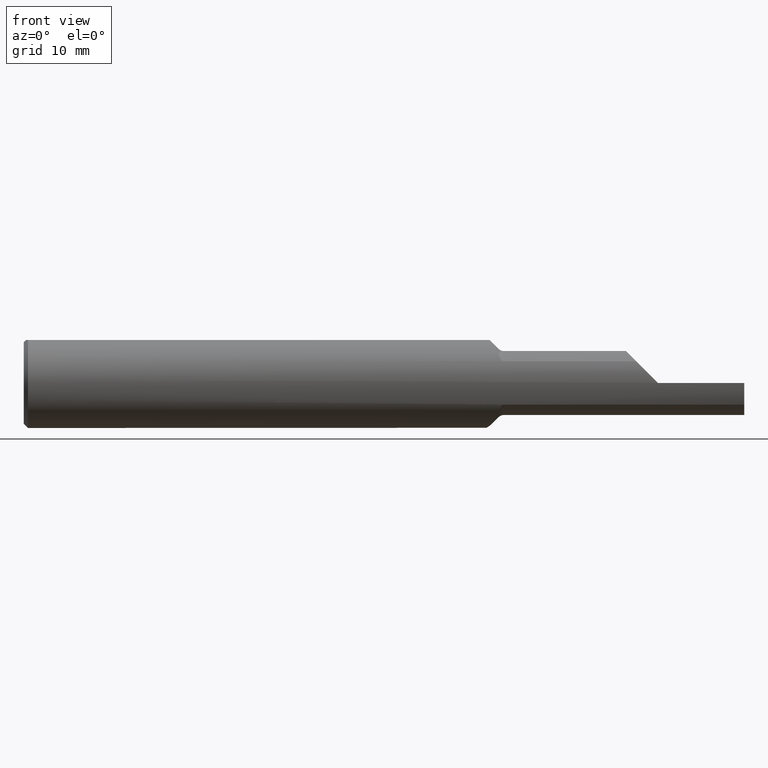
[diagram: clean part render]
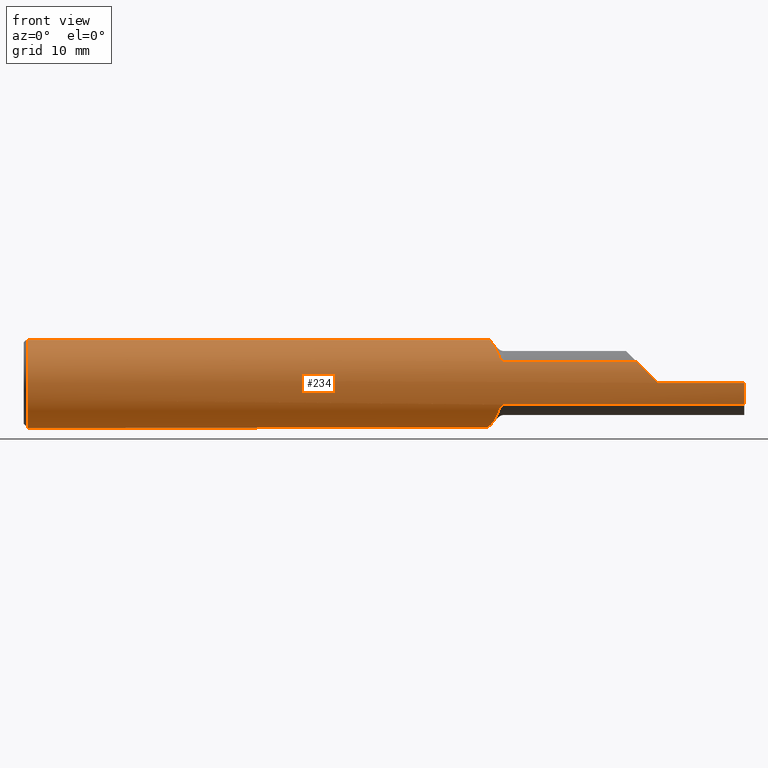
[diagram: same view with one face highlighted and labeled with its STEP entity id]
A machine part, front view. The second image highlights one B-rep face of the part: STEP entity #234.
In plain terms, the highlighted cylindrical surface (partial cylindrical patch) has radius 3.9649 mm, axis along (-1, -0, -0).
Its self-contained STEP definition (entity closure, byte-faithful):
#8 = CARTESIAN_POINT ( 'NONE',  ( 1.616635871238674804, -0.04622120725381384521, 0.1490999999999999270 ) ) ;
#15 = LINE ( 'NONE', #335, #493 ) ;
#29 = VERTEX_POINT ( 'NONE', #610 ) ;
#30 = CARTESIAN_POINT ( 'NONE',  ( 1.619947954481972374, -0.05509999999999988518, -0.1460520455180277233 ) ) ;
#31 = CARTESIAN_POINT ( 'NONE',  ( 1.616390666311418478, -0.04567079466777382996, -0.1496093336885842007 ) ) ;
#39 = AXIS2_PLACEMENT_3D ( 'NONE', #890, #480, #406 ) ;
#46 = VERTEX_POINT ( 'NONE', #143 ) ;
#47 = CARTESIAN_POINT ( 'NONE',  ( 1.585731319860130828, 0.04622120725381386602, 0.1490999999999999270 ) ) ;
#50 = CARTESIAN_POINT ( 'NONE',  ( 1.639043334450373202, -0.1026054125456331706, -0.1184462983253694313 ) ) ;
#51 = EDGE_CURVE ( 'NONE', #898, #580, #705, .T. ) ;
#52 = CARTESIAN_POINT ( 'NONE',  ( 2.125827139386172515, -0.1368622504537206908, 0.07507286061382652254 ) ) ;
#64 = VERTEX_POINT ( 'NONE', #291 ) ;
#66 = CARTESIAN_POINT ( 'NONE',  ( 1.659117107970367488, -0.1353021083790826862, 0.07785726114982068069 ) ) ;
#76 = DIRECTION ( 'NONE',  ( -1.000000000000000000, -0.000000000000000000, -0.000000000000000000 ) ) ;
#88 = CARTESIAN_POINT ( 'NONE',  ( 0.01499999999999970281, 0.000000000000000000, -0.1560999999999999888 ) ) ;
#96 = CARTESIAN_POINT ( 'NONE',  ( 1.568136278873995426, 0.1065604417534539161, -0.1145449302933602004 ) ) ;
#101 = EDGE_CURVE ( 'NONE', #619, #471, #450, .T. ) ;
#111 = CARTESIAN_POINT ( 'NONE',  ( 1.572111493183075526, 0.09241859738491069176, 0.1262303666906479938 ) ) ;
#112 = ORIENTED_EDGE ( 'NONE', *, *, #51, .T. ) ;
#115 = CARTESIAN_POINT ( 'NONE',  ( 1.554825678371061004, 0.1560001080571326859, -0.01202898505658659724 ) ) ;
#119 = EDGE_CURVE ( 'NONE', #898, #308, #927, .T. ) ;
#123 = AXIS2_PLACEMENT_3D ( 'NONE', #819, #76, #728 ) ;
#124 = VECTOR ( 'NONE', #621, 39.37007874015748143 ) ;
#125 = CARTESIAN_POINT ( 'NONE',  ( 1.647677669529663769, -0.1216247378590611244, 0.09785005437256874550 ) ) ;
#136 = CARTESIAN_POINT ( 'NONE',  ( 1.662527822966421542, -0.1365988990308485140, -0.07555529603437333153 ) ) ;
#139 = CARTESIAN_POINT ( 'NONE',  ( 1.622384701055378908, -0.06155901672333594782, -0.1436152989446242978 ) ) ;
#140 = B_SPLINE_CURVE_WITH_KNOTS ( 'NONE', 3,
 ( #642, #737, #573, #965, #233, #322, #401, #166 ),
 .UNSPECIFIED., .F., .F.,
 ( 4, 2, 2, 4 ),
 ( 0.0002510725968033642396, 0.001360323038052605425, 0.001914948258677229027, 0.002469573479301852628 ),
 .UNSPECIFIED. ) ;
#143 = CARTESIAN_POINT ( 'NONE',  ( 2.125827139386172515, -0.1368622504537206908, 0.07507286061382652254 ) ) ;
#154 = VERTEX_POINT ( 'NONE', #802 ) ;
#161 = DIRECTION ( 'NONE',  ( 1.000000000000000000, 0.000000000000000000, 0.000000000000000000 ) ) ;
#162 = FACE_OUTER_BOUND ( 'NONE', #485, .T. ) ;
#166 = CARTESIAN_POINT ( 'NONE',  ( 1.647677669529663769, -0.1216247378590611244, 0.09785005437256874550 ) ) ;
#169 = CARTESIAN_POINT ( 'NONE',  ( 1.617743472878949706, -0.04922367465879138454, 0.1481692309309302347 ) ) ;
#172 = CARTESIAN_POINT ( 'NONE',  ( 1.575205725379794863, 0.08160962841902984211, -0.1334729144958974878 ) ) ;
#179 = CARTESIAN_POINT ( 'NONE',  ( 1.585731319860130828, 0.04622120725381386602, 0.1490999999999999270 ) ) ;
#182 = CARTESIAN_POINT ( 'NONE',  ( 1.647677669529663991, -0.1216247378590616657, -0.09785005437256805161 ) ) ;
#183 = CARTESIAN_POINT ( 'NONE',  ( 1.554706639062241935, 0.1564576890087830963, -0.001432090562047943355 ) ) ;
#193 = CARTESIAN_POINT ( 'NONE',  ( 1.557949842719563716, 0.1441017141000177360, 0.06095261037131192994 ) ) ;
#204 = CIRCLE ( 'NONE', #478, 0.1560999999999999888 ) ;
#210 = CARTESIAN_POINT ( 'NONE',  ( 1.659133217808543836, -0.1353107203857764618, -0.07784230848261389224 ) ) ;
#213 = CARTESIAN_POINT ( 'NONE',  ( 1.629649791678658755, -0.08001478278870936822, -0.1342094499932111329 ) ) ;
#233 = CARTESIAN_POINT ( 'NONE',  ( 1.639046369923419011, -0.1024586785362516794, 0.1179732029027440315 ) ) ;
#234 = ADVANCED_FACE ( 'NONE', ( #162 ), #806, .T. ) ;
#250 = LINE ( 'NONE', #578, #910 ) ;
#251 = CARTESIAN_POINT ( 'NONE',  ( 1.582717130590346910, 0.05608262143449923437, 0.1460429478963033156 ) ) ;
#257 = CARTESIAN_POINT ( 'NONE',  ( 1.556943772126054171, 0.1479197732258280551, 0.05098120130938367522 ) ) ;
#262 = CARTESIAN_POINT ( 'NONE',  ( 1.595770450437745458, 0.01419006742947588780, -0.1557821214568156365 ) ) ;
#290 = CARTESIAN_POINT ( 'NONE',  ( 2.173926599881184973, -0.1559470758904249188, 0.02697340011881496288 ) ) ;
#291 = CARTESIAN_POINT ( 'NONE',  ( 2.200000000000000178, -0.1560974054877275197, 0.0009000000000000529929 ) ) ;
#293 = CARTESIAN_POINT ( 'NONE',  ( 2.500000000000000000, -0.1560999999999998500, -6.429183357567480113E-17 ) ) ;
#295 = CARTESIAN_POINT ( 'NONE',  ( 1.663905127337767853, -0.1368622504537206630, -0.07507286061382663356 ) ) ;
#296 = EDGE_CURVE ( 'NONE', #481, #506, #15, .T. ) ;
#298 = CARTESIAN_POINT ( 'NONE',  ( 1.665355339059327200, -0.1368622504537206630, 0.07507286061382655029 ) ) ;
#308 = VERTEX_POINT ( 'NONE', #517 ) ;
#310 = EDGE_CURVE ( 'NONE', #624, #442, #795, .T. ) ;
#322 = CARTESIAN_POINT ( 'NONE',  ( 1.643496342649758635, -0.1125319827598086075, 0.1084066892155327588 ) ) ;
#329 = CARTESIAN_POINT ( 'NONE',  ( 0.01499999999999970281, 0.000000000000000000, 0.000000000000000000 ) ) ;
#334 = CARTESIAN_POINT ( 'NONE',  ( 1.619947954481972374, -0.05510000000000016274, 0.1460520455180288335 ) ) ;
#335 = CARTESIAN_POINT ( 'NONE',  ( 2.500000000000000000, -0.04622120725381385214, 0.1490999999999999270 ) ) ;
#337 = CARTESIAN_POINT ( 'NONE',  ( 2.200000000000000178, 0.000000000000000000, 0.000000000000000000 ) ) ;
#347 = CARTESIAN_POINT ( 'NONE',  ( 1.556326481736836298, 0.1502618000434304546, -0.04359105745430103679 ) ) ;
#351 = CARTESIAN_POINT ( 'NONE',  ( 1.555491321236809110, 0.1534496953831912813, 0.03053740632296889773 ) ) ;
#357 = ORIENTED_EDGE ( 'NONE', *, *, #904, .F. ) ;
#369 = CARTESIAN_POINT ( 'NONE',  ( 1.651145638426165130, -0.1281877944157646387, 0.08922351133197536921 ) ) ;
#371 = CARTESIAN_POINT ( 'NONE',  ( 1.651138129536345422, -0.1281803271616077100, -0.08923529960324265431 ) ) ;
#373 = CARTESIAN_POINT ( 'NONE',  ( 1.654936704082035526, -0.1323297957738573671, 0.08284002084346410444 ) ) ;
#380 = CARTESIAN_POINT ( 'NONE',  ( 1.647677669529663769, -0.1216247378590611244, 0.09785005437256874550 ) ) ;
#393 = B_SPLINE_CURVE_WITH_KNOTS ( 'NONE', 3,
 ( #8, #169, #492, #894 ),
 .UNSPECIFIED., .F., .F.,
 ( 4, 4 ),
 ( 7.061912593305936376E-07, 0.0002510725968033642396 ),
 .UNSPECIFIED. ) ;
#395 = AXIS2_PLACEMENT_3D ( 'NONE', #400, #572, #899 ) ;
#400 = CARTESIAN_POINT ( 'NONE',  ( 0.01499999999999970281, 0.000000000000000000, 0.000000000000000000 ) ) ;
#401 = CARTESIAN_POINT ( 'NONE',  ( 1.645637141773243606, -0.1172428866879354215, 0.1032965664204454487 ) ) ;
#406 = DIRECTION ( 'NONE',  ( 0.000000000000000000, 0.000000000000000000, -1.000000000000000000 ) ) ;
#419 = CARTESIAN_POINT ( 'NONE',  ( 1.558238439965467848, 0.1430193460246382553, -0.06343701998802304953 ) ) ;
#425 = ORIENTED_EDGE ( 'NONE', *, *, #993, .F. ) ;
#427 = EDGE_CURVE ( 'NONE', #64, #46, #809, .T. ) ;
#433 = ORIENTED_EDGE ( 'NONE', *, *, #603, .F. ) ;
#440 = VERTEX_POINT ( 'NONE', #125 ) ;
#442 = VERTEX_POINT ( 'NONE', #47 ) ;
#450 = B_SPLINE_CURVE_WITH_KNOTS ( 'NONE', 3,
 ( #944, #452, #371, #622, #947, #210, #869, #136, #295, #627 ),
 .UNSPECIFIED., .F., .F.,
 ( 4, 2, 2, 2, 4 ),
 ( 4.336808689942017736E-18, 0.0004317125806836088391, 0.0006475688710254110360, 0.0007554970161963119176, 0.0008634251613672129077 ),
 .UNSPECIFIED. ) ;
#451 = LINE ( 'NONE', #785, #124 ) ;
#452 = CARTESIAN_POINT ( 'NONE',  ( 1.649275166335516518, -0.1250552196192680487, -0.09358606650367304325 ) ) ;
#456 = CARTESIAN_POINT ( 'NONE',  ( 1.616635871238674804, -0.04622120725381384521, 0.1490999999999999270 ) ) ;
#461 = CARTESIAN_POINT ( 'NONE',  ( 1.619947954481972374, -0.05509999999999988518, -0.1460520455180277233 ) ) ;
#471 = VERTEX_POINT ( 'NONE', #689 ) ;
#472 = CARTESIAN_POINT ( 'NONE',  ( 1.663897647107642541, -0.1368622504537206908, 0.07507286061382655029 ) ) ;
#473 = CARTESIAN_POINT ( 'NONE',  ( 0.01499999999999393485, -0.04622120725382292822, 0.1490999999999999270 ) ) ;
#475 = EDGE_CURVE ( 'NONE', #154, #442, #451, .T. ) ;
#478 = AXIS2_PLACEMENT_3D ( 'NONE', #329, #917, #997 ) ;
#480 = DIRECTION ( 'NONE',  ( 1.000000000000000000, 0.000000000000000000, 0.000000000000000000 ) ) ;
#481 = VERTEX_POINT ( 'NONE', #456 ) ;
#485 = EDGE_LOOP ( 'NONE', ( #772, #516, #112, #902, #571, #849, #708, #433, #425, #933, #934, #816, #865, #685, #357, #666 ) ) ;
#492 = CARTESIAN_POINT ( 'NONE',  ( 1.618847452044276380, -0.05218292863660528580, 0.1471525479557233840 ) ) ;
#493 = VECTOR ( 'NONE', #842, 39.37007874015748143 ) ;
#496 = DIRECTION ( 'NONE',  ( -1.000000000000000000, -0.000000000000000000, -0.000000000000000000 ) ) ;
#498 = CARTESIAN_POINT ( 'NONE',  ( 1.586370617195300259, 0.04404636233410028773, -0.1501015177063665662 ) ) ;
#506 = VERTEX_POINT ( 'NONE', #473 ) ;
#508 = CARTESIAN_POINT ( 'NONE',  ( 1.562035635856389382, 0.1288120369603220905, 0.08879568090486580911 ) ) ;
#514 = CARTESIAN_POINT ( 'NONE',  ( 1.555631178330442621, 0.1529188650008318218, -0.03311421027574134451 ) ) ;
#515 = VECTOR ( 'NONE', #161, 39.37007874015748143 ) ;
#516 = ORIENTED_EDGE ( 'NONE', *, *, #119, .F. ) ;
#517 = CARTESIAN_POINT ( 'NONE',  ( 2.500000000000000000, -0.1368622504537206075, -0.07507286061382667519 ) ) ;
#532 = CARTESIAN_POINT ( 'NONE',  ( 1.662518901797184645, -0.1365958207414229575, 0.07556078427752524473 ) ) ;
#543 = CARTESIAN_POINT ( 'NONE',  ( 1.624837984288969084, -0.06789740193273552382, -0.1407284077327287386 ) ) ;
#568 = CARTESIAN_POINT ( 'NONE',  ( 2.200000000000000178, -0.1560999999999999333, -6.429183357567478880E-17 ) ) ;
#571 = ORIENTED_EDGE ( 'NONE', *, *, #427, .T. ) ;
#572 = DIRECTION ( 'NONE',  ( 1.000000000000000000, -0.000000000000000000, -0.000000000000000000 ) ) ;
#573 = CARTESIAN_POINT ( 'NONE',  ( 1.629636922079378936, -0.08013278399623037507, 0.1346836549084771961 ) ) ;
#578 = CARTESIAN_POINT ( 'NONE',  ( 2.028999999999999915, -0.1368622504537206630, -0.07507286061382655029 ) ) ;
#580 = VERTEX_POINT ( 'NONE', #568 ) ;
#585 = CARTESIAN_POINT ( 'NONE',  ( 1.567637727932545966, 0.1083427162965807378, 0.1128590202107403323 ) ) ;
#590 = CARTESIAN_POINT ( 'NONE',  ( 1.592562882557630122, 0.02420714763283973031, -0.1545463090989345756 ) ) ;
#601 = AXIS2_PLACEMENT_3D ( 'NONE', #337, #735, #1048 ) ;
#603 = EDGE_CURVE ( 'NONE', #729, #440, #140, .T. ) ;
#610 = CARTESIAN_POINT ( 'NONE',  ( 1.665355339059327200, -0.1368622504537206630, 0.07507286061382655029 ) ) ;
#619 = VERTEX_POINT ( 'NONE', #182 ) ;
#621 = DIRECTION ( 'NONE',  ( 1.000000000000000000, 0.000000000000000000, 0.000000000000000000 ) ) ;
#622 = CARTESIAN_POINT ( 'NONE',  ( 1.654943952690025588, -0.1323373465084036749, -0.08282824373816786989 ) ) ;
#623 = B_SPLINE_CURVE_WITH_KNOTS ( 'NONE', 3,
 ( #298, #472, #532, #1016, #66, #804, #373, #369, #794, #380 ),
 .UNSPECIFIED., .F., .F.,
 ( 4, 2, 2, 2, 4 ),
 ( 0.000000000000000000, 0.0001087464654878244117, 0.0002174929309756488233, 0.0004349858619512990019, 0.0008699717239025995218 ),
 .UNSPECIFIED. ) ;
#624 = VERTEX_POINT ( 'NONE', #30 ) ;
#625 = CARTESIAN_POINT ( 'NONE',  ( 1.647677669529663991, -0.1216247378590616657, -0.09785005437256805161 ) ) ;
#627 = CARTESIAN_POINT ( 'NONE',  ( 1.665355339059327200, -0.1368622504537206630, -0.07507286061382655029 ) ) ;
#636 = CIRCLE ( 'NONE', #601, 0.1560999999999999888 ) ;
#642 = CARTESIAN_POINT ( 'NONE',  ( 1.619947954481972374, -0.05510000000000016274, 0.1460520455180288335 ) ) ;
#661 = CARTESIAN_POINT ( 'NONE',  ( 1.612876243189713676, -0.03601116808314823448, -0.1522199949055717816 ) ) ;
#666 = ORIENTED_EDGE ( 'NONE', *, *, #101, .T. ) ;
#679 = CARTESIAN_POINT ( 'NONE',  ( 1.605920490905884179, -0.01624198176629366996, -0.1555761199672636985 ) ) ;
#685 = ORIENTED_EDGE ( 'NONE', *, *, #310, .F. ) ;
#689 = CARTESIAN_POINT ( 'NONE',  ( 1.665355339059327200, -0.1368622504537206630, -0.07507286061382655029 ) ) ;
#695 = VERTEX_POINT ( 'NONE', #88 ) ;
#705 = LINE ( 'NONE', #875, #807 ) ;
#708 = ORIENTED_EDGE ( 'NONE', *, *, #801, .T. ) ;
#728 = DIRECTION ( 'NONE',  ( 0.000000000000000000, 0.000000000000000000, 1.000000000000000000 ) ) ;
#729 = VERTEX_POINT ( 'NONE', #334 ) ;
#730 = CARTESIAN_POINT ( 'NONE',  ( 2.028999999999999915, -0.1368622504537206630, 0.07507286061382655029 ) ) ;
#731 = EDGE_CURVE ( 'NONE', #506, #695, #204, .T. ) ;
#735 = DIRECTION ( 'NONE',  ( -1.000000000000000000, -0.000000000000000000, -0.000000000000000000 ) ) ;
#737 = CARTESIAN_POINT ( 'NONE',  ( 1.624823739681497070, -0.06802410892735211156, 0.1411762603185029163 ) ) ;
#749 = LINE ( 'NONE', #730, #515 ) ;
#756 = CARTESIAN_POINT ( 'NONE',  ( 1.564201075398399698, 0.1208322551158216157, -0.09937421660685935576 ) ) ;
#761 = CARTESIAN_POINT ( 'NONE',  ( 1.574548691111765208, 0.08387758383247824467, 0.1320588108186686593 ) ) ;
#768 = EDGE_CURVE ( 'NONE', #308, #471, #250, .T. ) ;
#769 = CARTESIAN_POINT ( 'NONE',  ( 1.577799391749286295, 0.07267242641550474003, -0.1385313344675339897 ) ) ;
#772 = ORIENTED_EDGE ( 'NONE', *, *, #768, .F. ) ;
#785 = CARTESIAN_POINT ( 'NONE',  ( 2.500000000000000000, 0.04622120725381385214, 0.1490999999999999270 ) ) ;
#794 = CARTESIAN_POINT ( 'NONE',  ( 1.649274980062238383, -0.1250548196140393309, 0.09358656369839993272 ) ) ;
#795 = B_SPLINE_CURVE_WITH_KNOTS ( 'NONE', 3,
 ( #923, #31, #661, #679, #830, #262, #590, #498, #981, #769, #172, #906, #96, #756, #846, #998, #419, #347, #514, #115, #183, #929, #351, #257, #193, #918, #508, #1001, #585, #111, #761, #913, #251, #179 ),
 .UNSPECIFIED., .F., .F.,
 ( 4, 2, 2, 2, 2, 2, 2, 2, 2, 2, 2, 2, 2, 2, 2, 2, 4 ),
 ( 0.002933762473820766825, 0.003742031587728698004, 0.004550300701636629183, 0.005358569815544559495, 0.006166838929452490674, 0.006975108043360421853, 0.007783377157268352164, 0.008591646271176284211, 0.009399915385084216257, 0.01020818449899214657, 0.01101645361290007862, 0.01182472272680800893, 0.01263299184071593924, 0.01344126095462387128, 0.01424953006853180160, 0.01505779918243973191, 0.01586606829634766222 ),
 .UNSPECIFIED. ) ;
#801 = EDGE_CURVE ( 'NONE', #29, #440, #623, .T. ) ;
#802 = CARTESIAN_POINT ( 'NONE',  ( 0.01499999999999970281, 0.04622120725381385214, 0.1490999999999999270 ) ) ;
#804 = CARTESIAN_POINT ( 'NONE',  ( 1.656379719458897615, -0.1336405423651178814, 0.08069838919496954976 ) ) ;
#806 = CYLINDRICAL_SURFACE ( 'NONE', #123, 0.1560999999999999888 ) ;
#807 = VECTOR ( 'NONE', #1020, 39.37007874015748143 ) ;
#809 =( BOUNDED_CURVE ( )  B_SPLINE_CURVE ( 3, ( #873, #290, #852, #52 ),
 .UNSPECIFIED., .F., .F. ) 
 B_SPLINE_CURVE_WITH_KNOTS ( ( 4, 4 ),
 ( 4.718154547241086405, 5.214101826882459711 ),
 .UNSPECIFIED. ) 
 CURVE ( )  GEOMETRIC_REPRESENTATION_ITEM ( )  RATIONAL_B_SPLINE_CURVE ( ( 1.000000000000000000, 0.9796078411043952494, 0.9796078411043952494, 1.000000000000000000 ) ) 
 REPRESENTATION_ITEM ( '' )  );
#816 = ORIENTED_EDGE ( 'NONE', *, *, #935, .T. ) ;
#819 = CARTESIAN_POINT ( 'NONE',  ( 2.500000000000000000, 0.000000000000000000, 0.000000000000000000 ) ) ;
#830 = CARTESIAN_POINT ( 'NONE',  ( 1.602444014235175018, -0.006023535698148741943, -0.1563110501433992161 ) ) ;
#842 = DIRECTION ( 'NONE',  ( -1.000000000000000000, -0.000000000000000000, -0.000000000000000000 ) ) ;
#846 = CARTESIAN_POINT ( 'NONE',  ( 1.562466943666290575, 0.1272252589142018053, -0.09107358582682752168 ) ) ;
#849 = ORIENTED_EDGE ( 'NONE', *, *, #976, .F. ) ;
#852 = CARTESIAN_POINT ( 'NONE',  ( 2.148687636049084304, -0.1494018870141901323, 0.05221236395091508747 ) ) ;
#857 = CIRCLE ( 'NONE', #395, 0.1560999999999999888 ) ;
#862 = CARTESIAN_POINT ( 'NONE',  ( 1.643605494258717714, -0.1128801050434164316, -0.1087193756079661289 ) ) ;
#865 = ORIENTED_EDGE ( 'NONE', *, *, #475, .T. ) ;
#869 = CARTESIAN_POINT ( 'NONE',  ( 1.660133848526593292, -0.1358099689617508488, -0.07696437036635844775 ) ) ;
#873 = CARTESIAN_POINT ( 'NONE',  ( 2.200000000000000178, -0.1560974054877275197, 0.0009000000000000529929 ) ) ;
#875 = CARTESIAN_POINT ( 'NONE',  ( 2.500000000000000000, -0.1560999999999999888, -6.429183357567480113E-17 ) ) ;
#890 = CARTESIAN_POINT ( 'NONE',  ( 2.500000000000000000, 0.000000000000000000, 0.000000000000000000 ) ) ;
#894 = CARTESIAN_POINT ( 'NONE',  ( 1.619947954481972374, -0.05510000000000016274, 0.1460520455180288335 ) ) ;
#898 = VERTEX_POINT ( 'NONE', #293 ) ;
#899 = DIRECTION ( 'NONE',  ( 0.000000000000000000, 0.000000000000000000, -1.000000000000000000 ) ) ;
#902 = ORIENTED_EDGE ( 'NONE', *, *, #1017, .T. ) ;
#904 = EDGE_CURVE ( 'NONE', #619, #624, #964, .T. ) ;
#906 = CARTESIAN_POINT ( 'NONE',  ( 1.570366644445166271, 0.09857836324474329726, -0.1214802726977048108 ) ) ;
#910 = VECTOR ( 'NONE', #496, 39.37007874015748143 ) ;
#913 = CARTESIAN_POINT ( 'NONE',  ( 1.579868065766410812, 0.06565156991703986755, 0.1420029927566435202 ) ) ;
#917 = DIRECTION ( 'NONE',  ( 1.000000000000000000, -0.000000000000000000, -0.000000000000000000 ) ) ;
#918 = CARTESIAN_POINT ( 'NONE',  ( 1.560510350944155133, 0.1344930745780571479, 0.07995084494976506528 ) ) ;
#923 = CARTESIAN_POINT ( 'NONE',  ( 1.619947954481972374, -0.05509999999999988518, -0.1460520455180277233 ) ) ;
#927 = CIRCLE ( 'NONE', #39, 0.1560999999999999888 ) ;
#929 = CARTESIAN_POINT ( 'NONE',  ( 1.555035562186708686, 0.1551973409643579438, 0.01987069930676313434 ) ) ;
#933 = ORIENTED_EDGE ( 'NONE', *, *, #296, .T. ) ;
#934 = ORIENTED_EDGE ( 'NONE', *, *, #731, .T. ) ;
#935 = EDGE_CURVE ( 'NONE', #695, #154, #857, .T. ) ;
#944 = CARTESIAN_POINT ( 'NONE',  ( 1.647677669529663991, -0.1216247378590616657, -0.09785005437256805161 ) ) ;
#947 = CARTESIAN_POINT ( 'NONE',  ( 1.656387868443501388, -0.1336477961603916298, -0.08068643471086799079 ) ) ;
#950 = CARTESIAN_POINT ( 'NONE',  ( 1.632025099093868059, -0.08583864586836981170, -0.1305621822854730052 ) ) ;
#964 = B_SPLINE_CURVE_WITH_KNOTS ( 'NONE', 3,
 ( #625, #862, #50, #950, #213, #543, #139, #461 ),
 .UNSPECIFIED., .F., .F.,
 ( 4, 2, 2, 4 ),
 ( 0.0007191013057833859018, 0.001826431889802076526, 0.002380097181811421676, 0.002933762473820766825 ),
 .UNSPECIFIED. ) ;
#965 = CARTESIAN_POINT ( 'NONE',  ( 1.636720641923614217, -0.09705665180989463126, 0.1224567324897907900 ) ) ;
#976 = EDGE_CURVE ( 'NONE', #29, #46, #749, .T. ) ;
#981 = CARTESIAN_POINT ( 'NONE',  ( 1.583366277754984619, 0.05393928263266115075, -0.1468426572203956892 ) ) ;
#993 = EDGE_CURVE ( 'NONE', #481, #729, #393, .T. ) ;
#997 = DIRECTION ( 'NONE',  ( 0.000000000000000000, 0.000000000000000000, -1.000000000000000000 ) ) ;
#998 = CARTESIAN_POINT ( 'NONE',  ( 1.559459294620472170, 0.1384172549045073752, -0.07294743371663479914 ) ) ;
#1001 = CARTESIAN_POINT ( 'NONE',  ( 1.565588306671178653, 0.1157756030439725109, 0.1052293854065043804 ) ) ;
#1016 = CARTESIAN_POINT ( 'NONE',  ( 1.660145525699796343, -0.1358139553268965238, 0.07695726023658457093 ) ) ;
#1017 = EDGE_CURVE ( 'NONE', #580, #64, #636, .T. ) ;
#1020 = DIRECTION ( 'NONE',  ( -1.000000000000000000, -0.000000000000000000, -0.000000000000000000 ) ) ;
#1048 = DIRECTION ( 'NONE',  ( 0.000000000000000000, 0.000000000000000000, 1.000000000000000000 ) ) ;